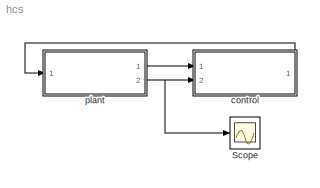
MODEL hcs
KIND model
BLOCK [Scope] Scope
  Floating = off
  NumInputPorts = 1
  Ports = [1]
  SID = 45
  ScopeSpecificationString = C++SS(StrPVP('Location','[953, 424, 1812, 1012]'),StrPVP('Open','off'),StrPVP('ZoomMode','yonly'),MxPVP('AxesTitles',54,'struct(''axes1'',''%<SignalLabel>'')'),MxPVP('ScopeGraphics',57,'struct(''FigureColor'',''[0.5 0.5 0.5]'',''AxesColor'',''[0 0 0]'',''AxesTickColor'',''[1 1 1]'',''LineColors'',''[1 1 0;1 0 1;0 1 1;1 0 0;0 1 0;0 0 1]'',''LineStyles'',''-|-|-|-|-|-'',''LineWidths'',''[0.5 0.5 0.5...<+313ch>
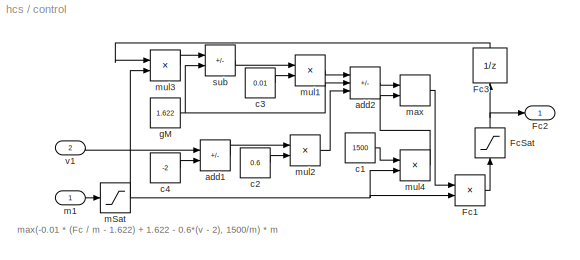
BLOCK [SubSystem] control
  Ports = [2, 1]
  RequestExecContextInheritance = off
  SID = 24
BLOCK [Product] control/Fc1
  Inputs = **
  Ports = [2, 1]
  SID = 43
  SampleTime = 0.128
BLOCK [Outport] control/Fc2
  SID = 40
BLOCK [UnitDelay] control/Fc3
  HasFrameUpgradeWarning = on
  InitialCondition = 2027.5
  NameLocation = right
  SID = 44
  SampleTime = -1
BLOCK [Saturate] control/FcSat
  LowerLimit = 1500
  NameLocation = right
  SID = 54
  SampleTime = 0.128
  UpperLimit = 5000
BLOCK [Sum] control/add1
  IconShape = rectangular
  Inputs = +-
  Ports = [2, 1]
  SID = 28
  SampleTime = 0.128
BLOCK [Sum] control/add2
  IconShape = rectangular
  Inputs = -+-
  Ports = [3, 1]
  SID = 29
  SampleTime = 0.128
BLOCK [Constant] control/c1
  SID = 55
  Value = 1500
BLOCK [Constant] control/c2
  SID = 30
  Value = 0.6
BLOCK [Constant] control/c3
  SID = 31
  Value = 0.01
BLOCK [Constant] control/c4
  SID = 32
  Value = -2
BLOCK [Constant] control/gM
  SID = 35
  Value = 1.622
BLOCK [Inport] control/m1
  SID = 27
BLOCK [Saturate] control/mSat
  LowerLimit = 1100
  SID = 52
  SampleTime = 0.128
  UpperLimit = 3000
BLOCK [MinMax] control/max
  Function = max
  Inputs = 2
  Ports = [2, 1]
  SID = 53
  SampleTime = 0.128
BLOCK [Product] control/mul1
  Inputs = **
  Ports = [2, 1]
  SID = 37
  SampleTime = 0.128
BLOCK [Product] control/mul2
  Inputs = **
  Ports = [2, 1]
  SID = 38
  SampleTime = 0.128
BLOCK [Product] control/mul3
  Inputs = */
  Ports = [2, 1]
  SID = 41
  SampleTime = 0.128
BLOCK [Product] control/mul4
  Inputs = */
  Ports = [2, 1]
  SID = 56
  SampleTime = 0.128
BLOCK [Sum] control/sub
  IconShape = rectangular
  Inputs = +-
  Ports = [2, 1]
  SID = 39
  SampleTime = 0.128
BLOCK [Inport] control/v1
  Port = 2
  SID = 26
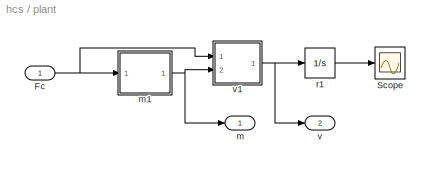
BLOCK [SubSystem] plant
  Ports = [1, 2]
  RequestExecContextInheritance = off
  SID = 1
BLOCK [Inport] plant/Fc
  SID = 2
BLOCK [Scope] plant/Scope
  Floating = off
  NumInputPorts = 1
  Ports = [1]
  SID = 51
  ScopeSpecificationString = C++SS(StrPVP('Location','[233, 657, 560, 889]'),StrPVP('Open','off'),StrPVP('ZoomMode','xonly'),MxPVP('AxesTitles',54,'struct(''axes1'',''%<SignalLabel>'')'),MxPVP('ScopeGraphics',57,'struct(''FigureColor'',''[0.501960784313725 0.501960784313725 0.501960784313725]'',''AxesColor'',''[0 0 0]'',''AxesTickColor'',''[1 1 1]'',''LineColors'',''[1 1 0;1 0 1;0 1 1;1 0 0;0 1 0;0 0 1]'',''LineStyles'',''-|-...<+409ch>
BLOCK [Outport] plant/m
  SID = 3
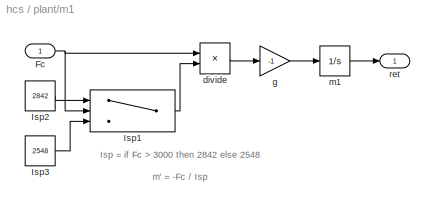
BLOCK [SubSystem] plant/m1
  Ports = [1, 1]
  RequestExecContextInheritance = off
  SID = 16
BLOCK [Inport] plant/m1/Fc
  SID = 17
BLOCK [Switch] plant/m1/Isp1
  Criteria = u2 > Threshold
  InputSameDT = off
  SID = 49
  SampleTime = 0
  SaturateOnIntegerOverflow = off
  Threshold = 3000
BLOCK [Constant] plant/m1/Isp2
  SID = 21
  Value = 2842
BLOCK [Constant] plant/m1/Isp3
  SID = 48
  Value = 2548
BLOCK [Product] plant/m1/divide
  Inputs = */
  Ports = [2, 1]
  SID = 19
  SampleTime = 0
BLOCK [Gain] plant/m1/g
  Gain = -1
  SID = 20
  SampleTime = 0
BLOCK [Integrator] plant/m1/m1
  InitialCondition = 1250
  Ports = [1, 1]
  SID = 8
BLOCK [Outport] plant/m1/ret
  SID = 18
BLOCK [Integrator] plant/r1
  InitialCondition = 30
  Ports = [1, 1]
  SID = 46
BLOCK [Outport] plant/v
  Port = 2
  SID = 22
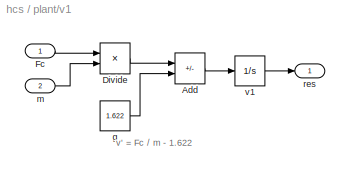
BLOCK [SubSystem] plant/v1
  Ports = [2, 1]
  RequestExecContextInheritance = off
  SID = 12
BLOCK [Sum] plant/v1/Add
  IconShape = rectangular
  Inputs = +-
  Ports = [2, 1]
  SID = 10
  SampleTime = 0
BLOCK [Product] plant/v1/Divide
  Inputs = */
  Ports = [2, 1]
  SID = 9
  SampleTime = 0
BLOCK [Inport] plant/v1/Fc
  SID = 13
BLOCK [Constant] plant/v1/g
  SID = 11
  Value = 1.622
BLOCK [Inport] plant/v1/m
  Port = 2
  SID = 15
BLOCK [Outport] plant/v1/res
  SID = 14
BLOCK [Integrator] plant/v1/v1
  InitialCondition = -2
  Ports = [1, 1]
  SID = 7
ANNOTATION control: max(-0.01 * (Fc / m - 1.622) + 1.622 - 0.6*(v - 2), 1500/m) * m
ANNOTATION plant/m1: Isp = if Fc > 3000 then 2842 else 2548\n\nm' = -Fc / Isp
ANNOTATION plant/v1: v' = Fc / m - 1.622
LINE control/Fc1:1 -> control/FcSat:1
LINE control/Fc3:1 -> control/mul3:1
NET control/FcSat:1 -> control/Fc2:1, control/Fc3:1
LINE control/add1:1 -> control/mul2:1
LINE control/add2:1 -> control/max:1
LINE control/c1:1 -> control/mul4:1
LINE control/c2:1 -> control/mul2:2
LINE control/c3:1 -> control/mul1:2
LINE control/c4:1 -> control/add1:2
NET control/gM:1 -> control/add2:2, control/sub:2
LINE control/m1:1 -> control/mSat:1
NET control/mSat:1 -> control/Fc1:2, control/mul3:2, control/mul4:2
LINE control/max:1 -> control/Fc1:1
LINE control/mul1:1 -> control/add2:1
LINE control/mul2:1 -> control/add2:3
LINE control/mul3:1 -> control/sub:1
LINE control/mul4:1 -> control/max:2
LINE control/sub:1 -> control/mul1:1
LINE control/v1:1 -> control/add1:1
LINE control:1 -> plant:1
NET plant/Fc:1 -> plant/m1:1, plant/v1:1
NET plant/m1/Fc:1 -> plant/m1/Isp1:2, plant/m1/divide:1
LINE plant/m1/Isp1:1 -> plant/m1/divide:2
LINE plant/m1/Isp2:1 -> plant/m1/Isp1:1
LINE plant/m1/Isp3:1 -> plant/m1/Isp1:3
LINE plant/m1/divide:1 -> plant/m1/g:1
LINE plant/m1/g:1 -> plant/m1/m1:1
LINE plant/m1/m1:1 -> plant/m1/ret:1
NET plant/m1:1 -> plant/m:1, plant/v1:2
LINE plant/r1:1 -> plant/Scope:1
LINE plant/v1/Add:1 -> plant/v1/v1:1
LINE plant/v1/Divide:1 -> plant/v1/Add:1
LINE plant/v1/Fc:1 -> plant/v1/Divide:1
LINE plant/v1/g:1 -> plant/v1/Add:2
LINE plant/v1/m:1 -> plant/v1/Divide:2
LINE plant/v1/v1:1 -> plant/v1/res:1
NET plant/v1:1 -> plant/r1:1, plant/v:1
LINE plant:1 -> control:1
NET plant:2 -> Scope:1, control:2
note: NET lines group one-source signal fan-out (src -> all destinations, sorted); 1:1 wires keep LINE
